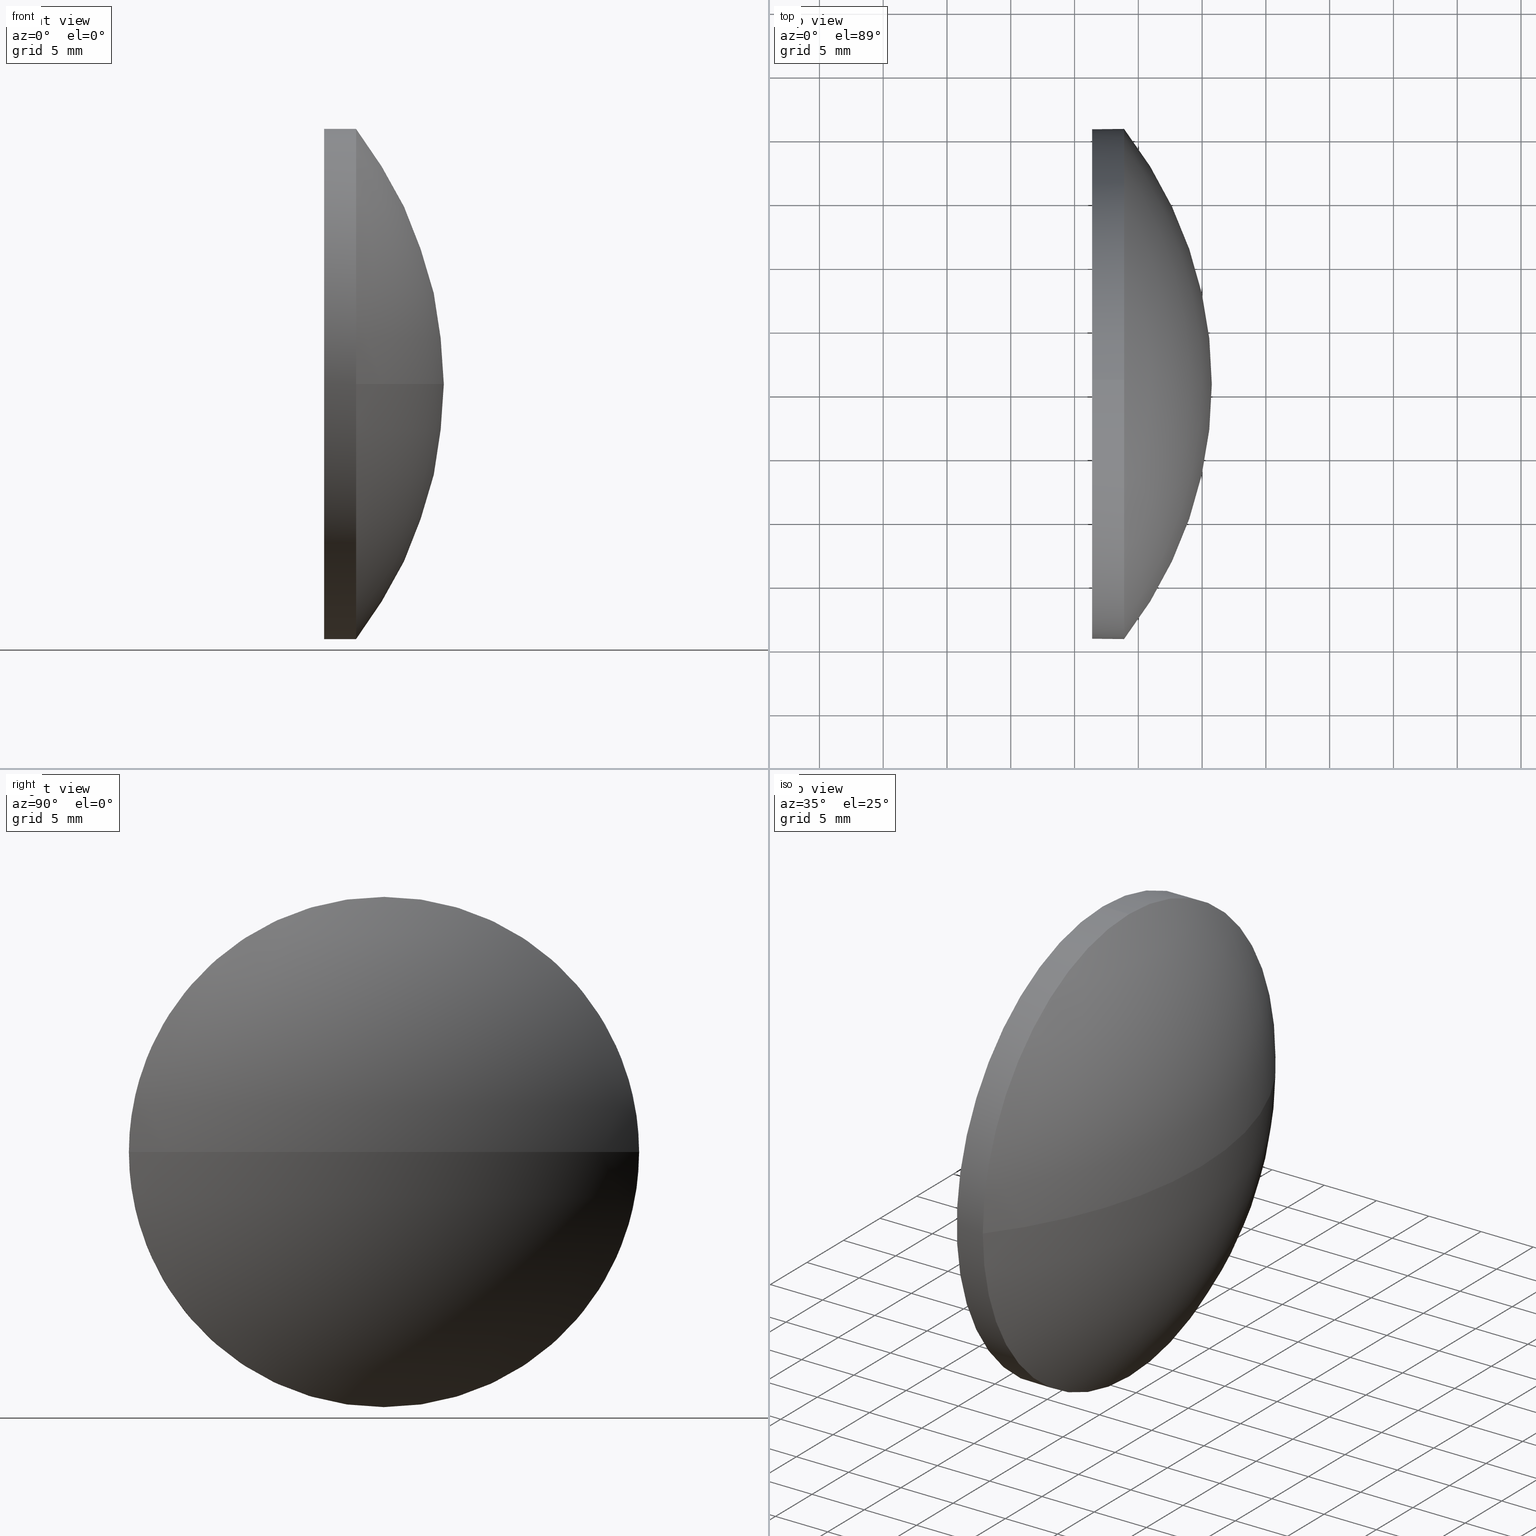
[diagram: canonical four-view strip — front | top / right | iso, engineering-drawing reading convention]
A machine part, canonical four-view strip (front | top / right | iso — engineering-drawing reading convention). The complete STEP part file that produces these views, byte-faithful:
ISO-10303-21;
HEADER;
FILE_DESCRIPTION (( 'STEP AP214' ),
    '1' );
FILE_NAME ('100228.STEP',
    '2019-05-24T06:06:06',
    ( '' ),
    ( '' ),
    'SwSTEP 2.0',
    'SolidWorks 2016',
    '' );
FILE_SCHEMA (( 'AUTOMOTIVE_DESIGN' ));
ENDSEC;

DATA;
#1 =( LENGTH_UNIT ( ) NAMED_UNIT ( * ) SI_UNIT ( .MILLI., .METRE. ) );
#2 = AXIS2_PLACEMENT_3D ( 'NONE', #183, #15, #97 ) ;
#3 = SURFACE_SIDE_STYLE ('',( #184 ) ) ;
#4 = VERTEX_POINT ( 'NONE', #123 ) ;
#5 = PRODUCT_DEFINITION_SHAPE ( 'NONE', 'NONE',  #151 ) ;
#6 = EDGE_LOOP ( 'NONE', ( #118, #11, #40, #59 ) ) ;
#7 = CARTESIAN_POINT ( 'NONE',  ( 505.7623540077719300, 40.65244250545557500, 0.0000000000000000000 ) ) ;
#8 = EDGE_CURVE ( 'NONE', #32, #38, #172, .T. ) ;
#9 = CARTESIAN_POINT ( 'NONE',  ( 498.8823540077719400, 40.65244250545561000, 19.99999999999999600 ) ) ;
#10 = CYLINDRICAL_SURFACE ( 'NONE', #65, 19.99999999999999600 ) ;
#11 = ORIENTED_EDGE ( 'NONE', *, *, #147, .T. ) ;
#12 = ORIENTED_EDGE ( 'NONE', *, *, #147, .F. ) ;
#13 = AXIS2_PLACEMENT_3D ( 'NONE', #87, #46, #161 ) ;
#14 = PRESENTATION_STYLE_ASSIGNMENT (( #130 ) ) ;
#15 = DIRECTION ( 'NONE',  ( -1.000000000000000000, -0.0000000000000000000, -0.0000000000000000000 ) ) ;
#16 = DIRECTION ( 'NONE',  ( -1.000000000000000000, -0.0000000000000000000, -0.0000000000000000000 ) ) ;
#17 = CARTESIAN_POINT ( 'NONE',  ( 492.4174003967859800, 40.65244250545561000, -19.99999999999999600 ) ) ;
#18 = DIRECTION ( 'NONE',  ( 0.0000000000000000000, 0.0000000000000000000, 1.000000000000000000 ) ) ;
#19 = EDGE_CURVE ( 'NONE', #32, #4, #132, .T. ) ;
#20 = APPLICATION_PROTOCOL_DEFINITION ( 'draft international standard', 'automotive_design', 1998, #105 ) ;
#21 = CIRCLE ( 'NONE', #98, 19.99999999999999600 ) ;
#22 = UNCERTAINTY_MEASURE_WITH_UNIT (LENGTH_MEASURE( 1.000000000000000100E-005 ), #68, 'distance_accuracy_value', 'NONE');
#23 = VECTOR ( 'NONE', #30, 1000.000000000000000 ) ;
#24 = STYLED_ITEM ( 'NONE', ( #14 ), #92 ) ;
#25 = FACE_OUTER_BOUND ( 'NONE', #80, .T. ) ;
#26 = DIRECTION ( 'NONE',  ( 0.0000000000000000000, 0.0000000000000000000, 1.000000000000000000 ) ) ;
#27 = AXIS2_PLACEMENT_3D ( 'NONE', #112, #114, #58 ) ;
#28 =( NAMED_UNIT ( * ) SI_UNIT ( $, .STERADIAN. ) SOLID_ANGLE_UNIT ( ) );
#29 = CARTESIAN_POINT ( 'NONE',  ( 496.3823540077719400, 40.65244250545561000, -19.99999999999999600 ) ) ;
#30 = DIRECTION ( 'NONE',  ( -1.000000000000000000, -0.0000000000000000000, -0.0000000000000000000 ) ) ;
#31 = DIRECTION ( 'NONE',  ( -0.0000000000000000000, 0.0000000000000000000, 1.000000000000000000 ) ) ;
#32 = VERTEX_POINT ( 'NONE', #9 ) ;
#33 =( LENGTH_UNIT ( ) NAMED_UNIT ( * ) SI_UNIT ( .MILLI., .METRE. ) );
#34 =( NAMED_UNIT ( * ) SI_UNIT ( $, .STERADIAN. ) SOLID_ANGLE_UNIT ( ) );
#35 = FACE_OUTER_BOUND ( 'NONE', #6, .T. ) ;
#36 = MECHANICAL_DESIGN_GEOMETRIC_PRESENTATION_REPRESENTATION (  '', ( #24 ), #39 ) ;
#37 = VERTEX_POINT ( 'NONE', #179 ) ;
#38 = VERTEX_POINT ( 'NONE', #42 ) ;
#39 =( GEOMETRIC_REPRESENTATION_CONTEXT ( 3 ) GLOBAL_UNCERTAINTY_ASSIGNED_CONTEXT ( ( #81 ) ) GLOBAL_UNIT_ASSIGNED_CONTEXT ( ( #1, #182, #28 ) ) REPRESENTATION_CONTEXT ( 'NONE', 'WORKASPACE' ) );
#40 = ORIENTED_EDGE ( 'NONE', *, *, #19, .F. ) ;
#41 = AXIS2_PLACEMENT_3D ( 'NONE', #153, #95, #26 ) ;
#42 = CARTESIAN_POINT ( 'NONE',  ( 496.3823540077719400, 40.65244250545561000, 19.99999999999999600 ) ) ;
#43 = UNCERTAINTY_MEASURE_WITH_UNIT (LENGTH_MEASURE( 1.000000000000000100E-005 ), #33, 'distance_accuracy_value', 'NONE');
#44 = FACE_OUTER_BOUND ( 'NONE', #139, .T. ) ;
#45 = ORIENTED_EDGE ( 'NONE', *, *, #8, .F. ) ;
#46 = DIRECTION ( 'NONE',  ( 0.0000000000000000000, 1.224646799147353200E-016, -1.000000000000000000 ) ) ;
#47 = COLOUR_RGB ( '',1.000000000000000000, 1.000000000000000000, 1.000000000000000000 ) ;
#48 = DIRECTION ( 'NONE',  ( -1.000000000000000000, -0.0000000000000000000, -0.0000000000000000000 ) ) ;
#49 = DIRECTION ( 'NONE',  ( 0.0000000000000000000, 0.0000000000000000000, 1.000000000000000000 ) ) ;
#50 = DIRECTION ( 'NONE',  ( -1.000000000000000000, -0.0000000000000000000, -0.0000000000000000000 ) ) ;
#51 = EDGE_CURVE ( 'NONE', #38, #186, #167, .T. ) ;
#52 =( NAMED_UNIT ( * ) SI_UNIT ( $, .STERADIAN. ) SOLID_ANGLE_UNIT ( ) );
#53 = ORIENTED_EDGE ( 'NONE', *, *, #19, .T. ) ;
#54 = ADVANCED_FACE ( 'NONE', ( #25 ), #164, .T. ) ;
#55 = AXIS2_PLACEMENT_3D ( 'NONE', #60, #84, #125 ) ;
#56 = VERTEX_POINT ( 'NONE', #140 ) ;
#57 = ORIENTED_EDGE ( 'NONE', *, *, #165, .T. ) ;
#58 = DIRECTION ( 'NONE',  ( 0.0000000000000000000, 1.000000000000000000, 0.0000000000000000000 ) ) ;
#59 = ORIENTED_EDGE ( 'NONE', *, *, #159, .F. ) ;
#60 = CARTESIAN_POINT ( 'NONE',  ( 496.3823540077719400, 40.65244250545561000, 0.0000000000000000000 ) ) ;
#61 = AXIS2_PLACEMENT_3D ( 'NONE', #129, #48, #119 ) ;
#62 = CIRCLE ( 'NONE', #2, 19.99999999999999600 ) ;
#63 = FILL_AREA_STYLE_COLOUR ( '', #47 ) ;
#64 = DIRECTION ( 'NONE',  ( -1.000000000000000000, -0.0000000000000000000, -0.0000000000000000000 ) ) ;
#65 = AXIS2_PLACEMENT_3D ( 'NONE', #127, #170, #142 ) ;
#66 = VECTOR ( 'NONE', #94, 1000.000000000000000 ) ;
#67 = SHAPE_DEFINITION_REPRESENTATION ( #5, #173 ) ;
#68 =( LENGTH_UNIT ( ) NAMED_UNIT ( * ) SI_UNIT ( .MILLI., .METRE. ) );
#69 = ORIENTED_EDGE ( 'NONE', *, *, #159, .T. ) ;
#70 = MECHANICAL_DESIGN_GEOMETRIC_PRESENTATION_REPRESENTATION (  '', ( #149 ), #109 ) ;
#71 = PRODUCT ( '100228', '100228', '', ( #133 ) ) ;
#72 = FACE_OUTER_BOUND ( 'NONE', #152, .T. ) ;
#73 = CARTESIAN_POINT ( 'NONE',  ( 492.4174003967859800, 40.65244250545561000, 19.99999999999999600 ) ) ;
#74 = DIRECTION ( 'NONE',  ( 0.0000000000000000000, 0.0000000000000000000, -1.000000000000000000 ) ) ;
#75 = AXIS2_PLACEMENT_3D ( 'NONE', #156, #50, #49 ) ;
#76 = CIRCLE ( 'NONE', #13, 32.50976744186041900 ) ;
#77 = PRODUCT_DEFINITION_FORMATION_WITH_SPECIFIED_SOURCE ( '�κ�', '', #71, .NOT_KNOWN. ) ;
#78 = ORIENTED_EDGE ( 'NONE', *, *, #51, .F. ) ;
#79 = ADVANCED_FACE ( 'NONE', ( #35 ), #93, .T. ) ;
#80 = EDGE_LOOP ( 'NONE', ( #12, #122, #115, #143 ) ) ;
#81 = UNCERTAINTY_MEASURE_WITH_UNIT (LENGTH_MEASURE( 1.000000000000000100E-005 ), #1, 'distance_accuracy_value', 'NONE');
#82 = AXIS2_PLACEMENT_3D ( 'NONE', #185, #31, #144 ) ;
#83 = CLOSED_SHELL ( 'NONE', ( #148, #54, #79, #110, #107 ) ) ;
#84 = DIRECTION ( 'NONE',  ( -1.000000000000000000, -0.0000000000000000000, -0.0000000000000000000 ) ) ;
#85 = FILL_AREA_STYLE ('',( #63 ) ) ;
#86 = EDGE_CURVE ( 'NONE', #4, #37, #62, .T. ) ;
#87 = CARTESIAN_POINT ( 'NONE',  ( 473.2525865659115400, 40.65244250545557500, 0.0000000000000000000 ) ) ;
#88 = CIRCLE ( 'NONE', #82, 32.50976744186040400 ) ;
#89 = PRODUCT_RELATED_PRODUCT_CATEGORY ( 'part', '', ( #71 ) ) ;
#90 = SURFACE_STYLE_USAGE ( .BOTH. , #3 ) ;
#91 = EDGE_CURVE ( 'NONE', #108, #56, #76, .T. ) ;
#92 = MANIFOLD_SOLID_BREP ( '��ת1', #83 ) ;
#93 = SPHERICAL_SURFACE ( 'NONE', #138, 32.50976744186041900 ) ;
#94 = DIRECTION ( 'NONE',  ( -1.000000000000000000, -0.0000000000000000000, -0.0000000000000000000 ) ) ;
#95 = DIRECTION ( 'NONE',  ( -1.000000000000000000, -0.0000000000000000000, -0.0000000000000000000 ) ) ;
#96 = AXIS2_PLACEMENT_3D ( 'NONE', #117, #16, #102 ) ;
#97 = DIRECTION ( 'NONE',  ( 0.0000000000000000000, 0.0000000000000000000, 1.000000000000000000 ) ) ;
#98 = AXIS2_PLACEMENT_3D ( 'NONE', #157, #64, #120 ) ;
#99 = SURFACE_SIDE_STYLE ('',( #126 ) ) ;
#100 = CARTESIAN_POINT ( 'NONE',  ( 496.3823540077719400, 40.65244250545561000, 0.0000000000000000000 ) ) ;
#101 = ORIENTED_EDGE ( 'NONE', *, *, #8, .T. ) ;
#102 = DIRECTION ( 'NONE',  ( 0.0000000000000000000, 0.0000000000000000000, 1.000000000000000000 ) ) ;
#103 = APPLICATION_CONTEXT ( 'automotive_design' ) ;
#104 = AXIS2_PLACEMENT_3D ( 'NONE', #131, #18, #134 ) ;
#105 = APPLICATION_CONTEXT ( 'automotive_design' ) ;
#106 = COLOUR_RGB ( '',1.000000000000000000, 1.000000000000000000, 1.000000000000000000 ) ;
#107 = ADVANCED_FACE ( 'NONE', ( #166 ), #141, .F. ) ;
#108 = VERTEX_POINT ( 'NONE', #7 ) ;
#109 =( GEOMETRIC_REPRESENTATION_CONTEXT ( 3 ) GLOBAL_UNCERTAINTY_ASSIGNED_CONTEXT ( ( #22 ) ) GLOBAL_UNIT_ASSIGNED_CONTEXT ( ( #68, #145, #52 ) ) REPRESENTATION_CONTEXT ( 'NONE', 'WORKASPACE' ) );
#110 = ADVANCED_FACE ( 'NONE', ( #44 ), #146, .T. ) ;
#111 =( GEOMETRIC_REPRESENTATION_CONTEXT ( 3 ) GLOBAL_UNCERTAINTY_ASSIGNED_CONTEXT ( ( #43 ) ) GLOBAL_UNIT_ASSIGNED_CONTEXT ( ( #33, #121, #34 ) ) REPRESENTATION_CONTEXT ( 'NONE', 'WORKASPACE' ) );
#112 = CARTESIAN_POINT ( 'NONE',  ( 473.2525865659115400, 40.65244250545557500, 0.0000000000000000000 ) ) ;
#113 = PRESENTATION_STYLE_ASSIGNMENT (( #90 ) ) ;
#114 = DIRECTION ( 'NONE',  ( -0.0000000000000000000, 0.0000000000000000000, -1.000000000000000000 ) ) ;
#115 = ORIENTED_EDGE ( 'NONE', *, *, #137, .F. ) ;
#116 = DIRECTION ( 'NONE',  ( -0.0000000000000000000, 0.0000000000000000000, -1.000000000000000000 ) ) ;
#117 = CARTESIAN_POINT ( 'NONE',  ( 498.8823540077719400, 40.65244250545561000, 0.0000000000000000000 ) ) ;
#118 = ORIENTED_EDGE ( 'NONE', *, *, #91, .F. ) ;
#119 = DIRECTION ( 'NONE',  ( 0.0000000000000000000, 0.0000000000000000000, 1.000000000000000000 ) ) ;
#120 = DIRECTION ( 'NONE',  ( 0.0000000000000000000, 0.0000000000000000000, 1.000000000000000000 ) ) ;
#121 =( NAMED_UNIT ( * ) PLANE_ANGLE_UNIT ( ) SI_UNIT ( $, .RADIAN. ) );
#122 = ORIENTED_EDGE ( 'NONE', *, *, #91, .T. ) ;
#123 = CARTESIAN_POINT ( 'NONE',  ( 498.8823540077719400, 60.65244250545559600, 0.0000000000000000000 ) ) ;
#124 = ORIENTED_EDGE ( 'NONE', *, *, #176, .T. ) ;
#125 = DIRECTION ( 'NONE',  ( 0.0000000000000000000, 0.0000000000000000000, 1.000000000000000000 ) ) ;
#126 = SURFACE_STYLE_FILL_AREA ( #85 ) ;
#127 = CARTESIAN_POINT ( 'NONE',  ( 492.4174003967859800, 40.65244250545561000, 0.0000000000000000000 ) ) ;
#128 = PRESENTATION_LAYER_ASSIGNMENT (  '', '', ( #24 ) ) ;
#129 = CARTESIAN_POINT ( 'NONE',  ( 498.8823540077719400, 40.65244250545561000, 0.0000000000000000000 ) ) ;
#130 = SURFACE_STYLE_USAGE ( .BOTH. , #99 ) ;
#131 = CARTESIAN_POINT ( 'NONE',  ( 0.0000000000000000000, 0.0000000000000000000, 0.0000000000000000000 ) ) ;
#132 = CIRCLE ( 'NONE', #41, 19.99999999999999600 ) ;
#133 = PRODUCT_CONTEXT ( 'NONE', #105, 'mechanical' ) ;
#134 = DIRECTION ( 'NONE',  ( 1.000000000000000000, 0.0000000000000000000, 0.0000000000000000000 ) ) ;
#135 = APPLICATION_PROTOCOL_DEFINITION ( 'draft international standard', 'automotive_design', 1998, #103 ) ;
#136 = ORIENTED_EDGE ( 'NONE', *, *, #86, .T. ) ;
#137 = EDGE_CURVE ( 'NONE', #37, #56, #168, .T. ) ;
#138 = AXIS2_PLACEMENT_3D ( 'NONE', #180, #116, #171 ) ;
#139 = EDGE_LOOP ( 'NONE', ( #158, #181, #69, #101, #150 ) ) ;
#140 = CARTESIAN_POINT ( 'NONE',  ( 498.8823540077719400, 20.65244250545559600, -2.449293598294704100E-015 ) ) ;
#141 = PLANE ( 'NONE',  #154 ) ;
#142 = DIRECTION ( 'NONE',  ( 0.0000000000000000000, 0.0000000000000000000, 1.000000000000000000 ) ) ;
#143 = ORIENTED_EDGE ( 'NONE', *, *, #86, .F. ) ;
#144 = DIRECTION ( 'NONE',  ( 1.000000000000000000, 0.0000000000000000000, 0.0000000000000000000 ) ) ;
#145 =( NAMED_UNIT ( * ) PLANE_ANGLE_UNIT ( ) SI_UNIT ( $, .RADIAN. ) );
#146 = CYLINDRICAL_SURFACE ( 'NONE', #75, 19.99999999999999600 ) ;
#147 = EDGE_CURVE ( 'NONE', #108, #4, #88, .T. ) ;
#148 = ADVANCED_FACE ( 'NONE', ( #72 ), #10, .T. ) ;
#149 = STYLED_ITEM ( 'NONE', ( #113 ), #173 ) ;
#150 = ORIENTED_EDGE ( 'NONE', *, *, #165, .F. ) ;
#151 = PRODUCT_DEFINITION ( 'δ֪', '', #77, #177 ) ;
#152 = EDGE_LOOP ( 'NONE', ( #136, #124, #78, #45, #53 ) ) ;
#153 = CARTESIAN_POINT ( 'NONE',  ( 498.8823540077719400, 40.65244250545561000, 0.0000000000000000000 ) ) ;
#154 = AXIS2_PLACEMENT_3D ( 'NONE', #100, #169, #74 ) ;
#155 = ORIENTED_EDGE ( 'NONE', *, *, #51, .T. ) ;
#156 = CARTESIAN_POINT ( 'NONE',  ( 492.4174003967859800, 40.65244250545561000, 0.0000000000000000000 ) ) ;
#157 = CARTESIAN_POINT ( 'NONE',  ( 496.3823540077719400, 40.65244250545561000, 0.0000000000000000000 ) ) ;
#158 = ORIENTED_EDGE ( 'NONE', *, *, #176, .F. ) ;
#159 = EDGE_CURVE ( 'NONE', #56, #32, #178, .T. ) ;
#160 = FILL_AREA_STYLE_COLOUR ( '', #106 ) ;
#161 = DIRECTION ( 'NONE',  ( 0.0000000000000000000, 1.000000000000000000, 1.224646799147353200E-016 ) ) ;
#162 = EDGE_LOOP ( 'NONE', ( #155, #57 ) ) ;
#163 = LINE ( 'NONE', #17, #23 ) ;
#164 = SPHERICAL_SURFACE ( 'NONE', #27, 32.50976744186041900 ) ;
#165 = EDGE_CURVE ( 'NONE', #186, #38, #21, .T. ) ;
#166 = FACE_OUTER_BOUND ( 'NONE', #162, .T. ) ;
#167 = CIRCLE ( 'NONE', #55, 19.99999999999999600 ) ;
#168 = CIRCLE ( 'NONE', #96, 19.99999999999999600 ) ;
#169 = DIRECTION ( 'NONE',  ( 1.000000000000000000, 0.0000000000000000000, 0.0000000000000000000 ) ) ;
#170 = DIRECTION ( 'NONE',  ( -1.000000000000000000, -0.0000000000000000000, -0.0000000000000000000 ) ) ;
#171 = DIRECTION ( 'NONE',  ( 0.0000000000000000000, 1.000000000000000000, 0.0000000000000000000 ) ) ;
#172 = LINE ( 'NONE', #73, #66 ) ;
#173 = ADVANCED_BREP_SHAPE_REPRESENTATION ( '100228', ( #92, #104 ), #111 ) ;
#174 = PRESENTATION_LAYER_ASSIGNMENT (  '', '', ( #149 ) ) ;
#175 = FILL_AREA_STYLE ('',( #160 ) ) ;
#176 = EDGE_CURVE ( 'NONE', #37, #186, #163, .T. ) ;
#177 = PRODUCT_DEFINITION_CONTEXT ( 'detailed design', #103, 'design' ) ;
#178 = CIRCLE ( 'NONE', #61, 19.99999999999999600 ) ;
#179 = CARTESIAN_POINT ( 'NONE',  ( 498.8823540077719400, 40.65244250545561000, -19.99999999999999600 ) ) ;
#180 = CARTESIAN_POINT ( 'NONE',  ( 473.2525865659115400, 40.65244250545557500, 0.0000000000000000000 ) ) ;
#181 = ORIENTED_EDGE ( 'NONE', *, *, #137, .T. ) ;
#182 =( NAMED_UNIT ( * ) PLANE_ANGLE_UNIT ( ) SI_UNIT ( $, .RADIAN. ) );
#183 = CARTESIAN_POINT ( 'NONE',  ( 498.8823540077719400, 40.65244250545561000, 0.0000000000000000000 ) ) ;
#184 = SURFACE_STYLE_FILL_AREA ( #175 ) ;
#185 = CARTESIAN_POINT ( 'NONE',  ( 473.2525865659115400, 40.65244250545557500, 0.0000000000000000000 ) ) ;
#186 = VERTEX_POINT ( 'NONE', #29 ) ;
ENDSEC;
END-ISO-10303-21;
